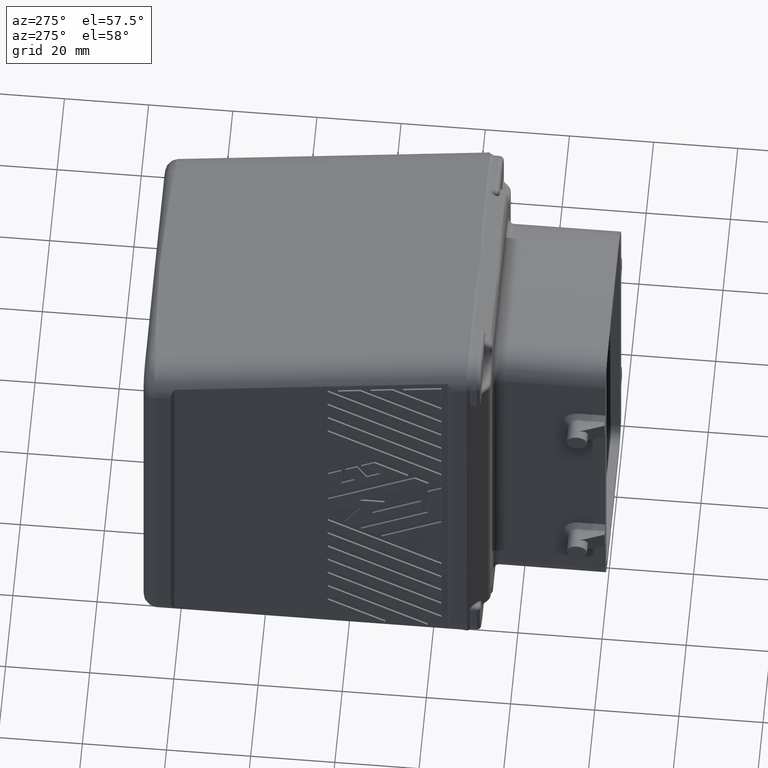
[diagram: clean part render]
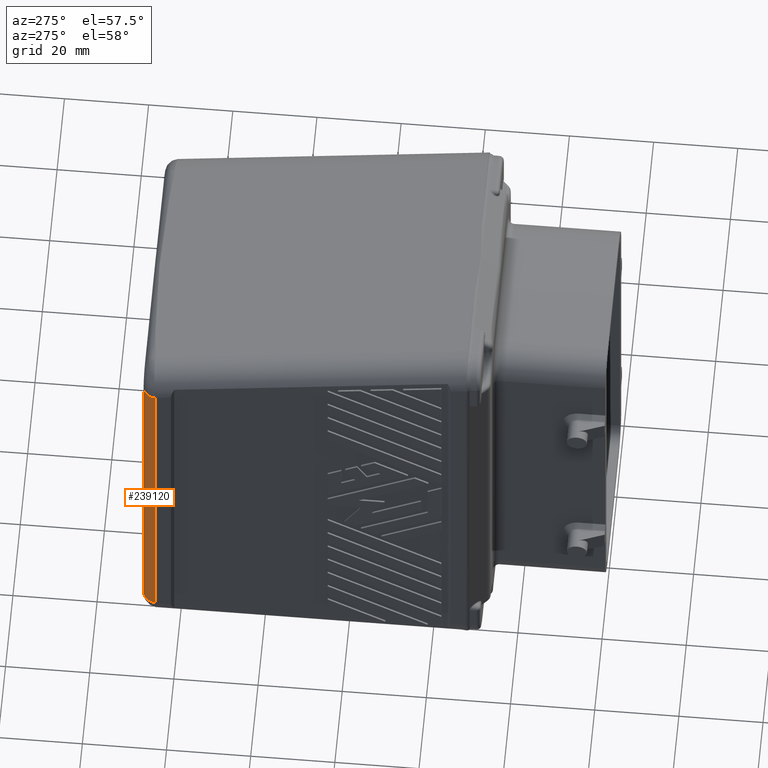
[diagram: same view with one face highlighted and labeled with its STEP entity id]
A machine part, auxiliary view. The second image highlights one B-rep face of the part: STEP entity #239120.
In plain terms, the highlighted cylindrical surface (edge-blend (fillet) strip) has radius 3 mm, axis along (0, 0, 1).
Its self-contained STEP definition (entity closure, byte-faithful):
#95660=CARTESIAN_POINT('',(13.6173136543451,125.749860699868,
-68.4044855420491));
#95670=VERTEX_POINT('',#95660);
#185380=CARTESIAN_POINT('',(13.6173136543522,125.749860699868,
21.6280860330286));
#185390=VERTEX_POINT('',#185380);
#185490=CARTESIAN_POINT('',(13.6173136543522,125.749860699868,
-68.9044855420491));
#185500=DIRECTION('',(0.,0.,1.));
#185510=VECTOR('',#185500,1.);
#185520=LINE('',#185490,#185510);
#185530=EDGE_CURVE('',#95670,#185390,#185520,.T.);
#194840=CARTESIAN_POINT('',(16.5911340478571,128.749746469049,
-68.4044855420491));
#194850=VERTEX_POINT('',#194840);
#194880=CARTESIAN_POINT('',(16.6173136543507,125.749860699859,
-68.4044855420491));
#194890=DIRECTION('',(0.,0.,1.));
#194900=DIRECTION('',(1.,0.,-0.));
#194910=AXIS2_PLACEMENT_3D('',#194880,#194890,#194900);
#194920=CIRCLE('',#194910,3.00000000000839);
#194930=EDGE_CURVE('',#194850,#95670,#194920,.T.);
#205570=CARTESIAN_POINT('',(16.5911335711412,128.749746469038,
21.6280860330286));
#205580=VERTEX_POINT('',#205570);
#205610=CARTESIAN_POINT('',(16.5911340478571,128.749746469049,
-68.4044855420491));
#205620=DIRECTION('',(0.,0.,1.));
#205630=VECTOR('',#205620,1.);
#205640=LINE('',#205610,#205630);
#205650=EDGE_CURVE('',#194850,#205580,#205640,.T.);
#238950=CARTESIAN_POINT('',(16.6173136543522,125.749860699868,
-68.9044855420491));
#238960=DIRECTION('',(0.,0.,1.));
#238970=DIRECTION('',(1.,0.,-0.));
#238980=AXIS2_PLACEMENT_3D('',#238950,#238960,#238970);
#238990=CYLINDRICAL_SURFACE('',#238980,2.99999999999999);
#239000=CARTESIAN_POINT('',(16.6173131792885,125.74986069986,
21.6280860330285));
#239010=DIRECTION('',(0.,0.,1.));
#239020=DIRECTION('',(1.,0.,-0.));
#239030=AXIS2_PLACEMENT_3D('',#239000,#239010,#239020);
#239040=CIRCLE('',#239030,2.9999999999994);
#239050=EDGE_CURVE('',#205580,#185390,#239040,.T.);
#239060=ORIENTED_EDGE('',*,*,#239050,.F.);
#239070=ORIENTED_EDGE('',*,*,#185530,.T.);
#239080=ORIENTED_EDGE('',*,*,#194930,.T.);
#239090=ORIENTED_EDGE('',*,*,#205650,.F.);
#239100=EDGE_LOOP('',(#239090,#239080,#239070,#239060));
#239110=FACE_OUTER_BOUND('',#239100,.T.);
#239120=ADVANCED_FACE('',(#239110),#238990,.T.);